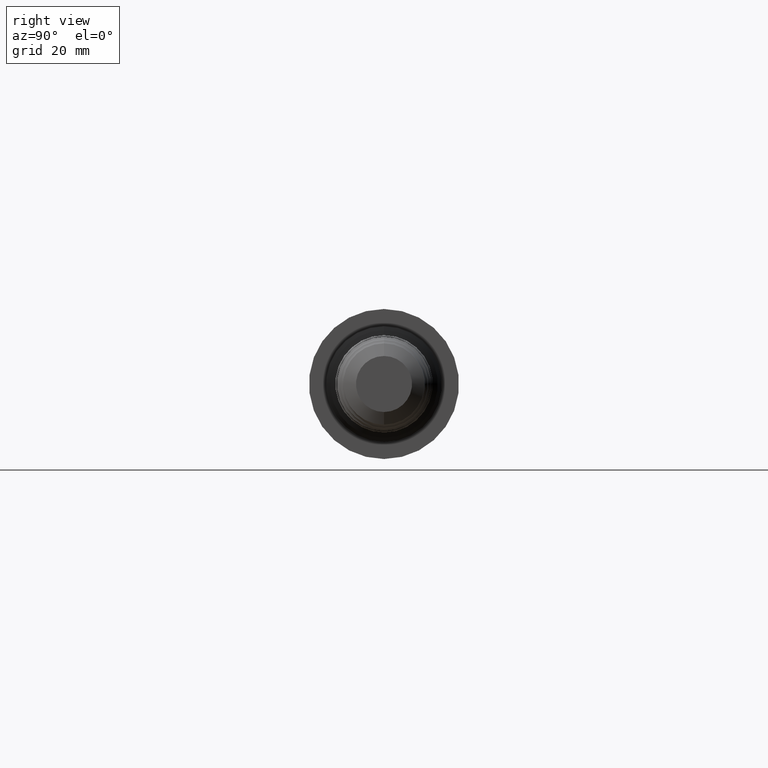
[diagram: clean part render]
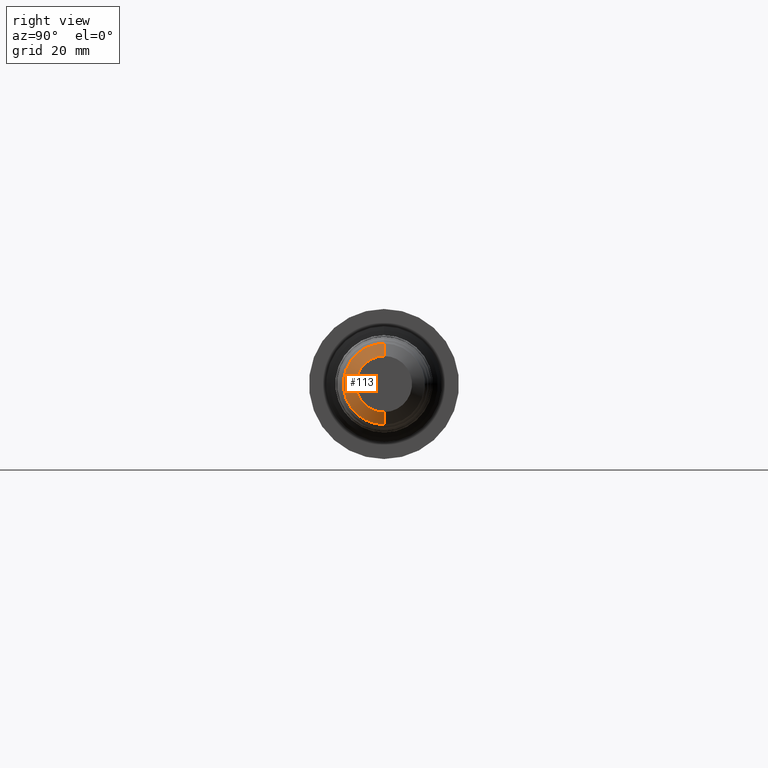
[diagram: same view with one face highlighted and labeled with its STEP entity id]
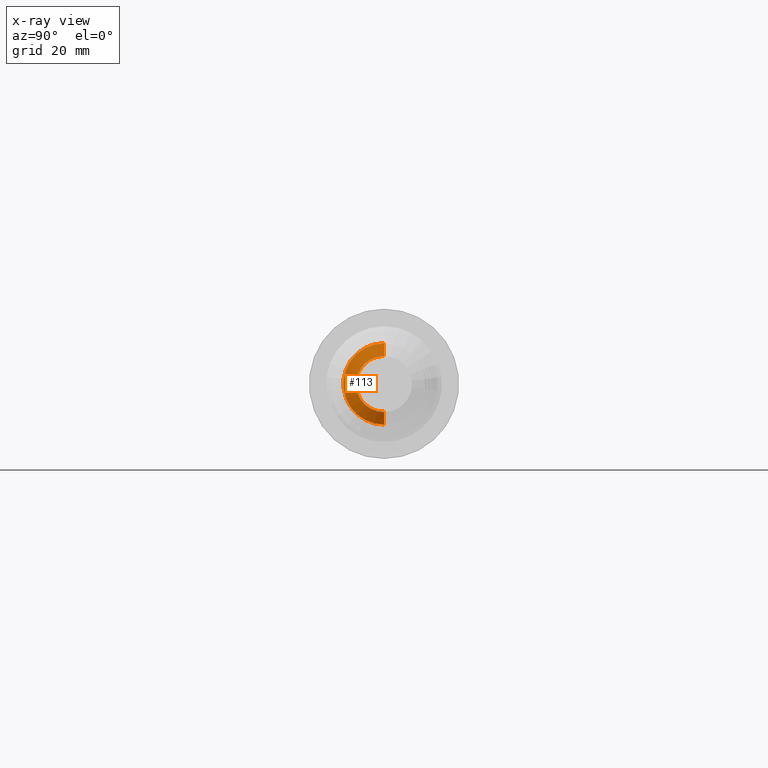
[diagram: x-ray of the same camera — body ghosted, the highlighted face saturated]
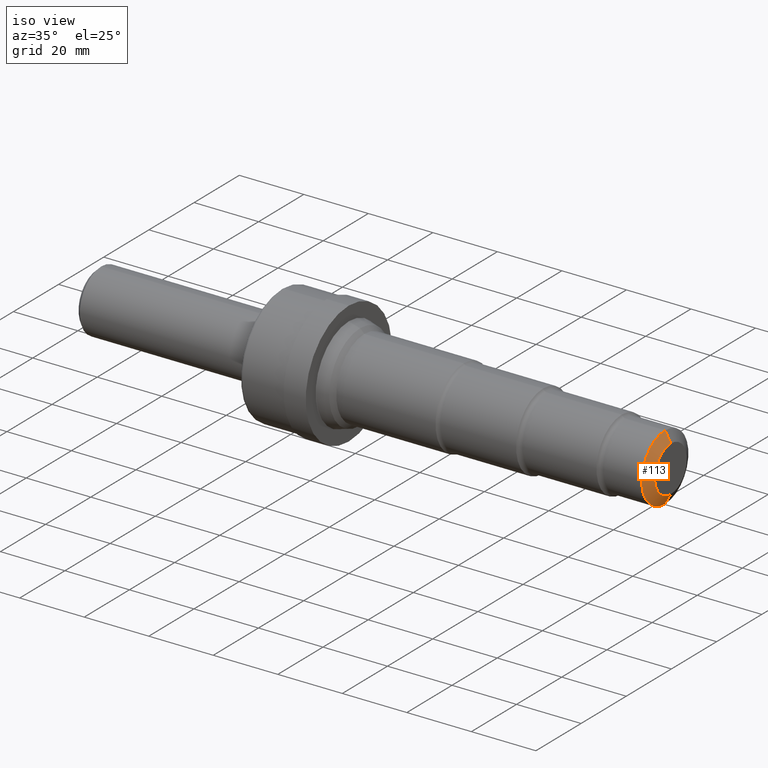
[diagram: same view with one face highlighted and labeled with its STEP entity id]
A machine part, right view. The second image highlights one B-rep face of the part: STEP entity #113.
The next image is the same camera in x-ray: the body ghosted, the highlighted face saturated — about 0% of this face is hidden behind the body in this view.
A second angle (iso view) of the same face is appended — the face is thin or edge-on in the first view.
In plain terms, the highlighted conical surface has half-angle 61 deg.
Its self-contained STEP definition (entity closure, byte-faithful):
#41 = ORIENTED_EDGE ( 'NONE', *, *, #503, .T. ) ;
#73 = VERTEX_POINT ( 'NONE', #77 ) ;
#77 = CARTESIAN_POINT ( 'NONE',  ( 7.000000000000000000, 0.0000000000000000000, 0.2801166571309994247 ) ) ;
#113 = ADVANCED_FACE ( 'NONE', ( #778 ), #973, .T. ) ;
#133 = CARTESIAN_POINT ( 'NONE',  ( 7.000000000000000000, 0.0000000000000000000, 0.0000000000000000000 ) ) ;
#163 = LINE ( 'NONE', #995, #351 ) ;
#187 = CIRCLE ( 'NONE', #616, 0.4063999999999999835 ) ;
#210 = DIRECTION ( 'NONE',  ( -1.000000000000000000, -0.0000000000000000000, -0.0000000000000000000 ) ) ;
#270 = VERTEX_POINT ( 'NONE', #313 ) ;
#313 = CARTESIAN_POINT ( 'NONE',  ( 6.929999999999999716, 0.0000000000000000000, 0.4063999999999999835 ) ) ;
#321 = DIRECTION ( 'NONE',  ( -1.000000000000000000, -0.0000000000000000000, -0.0000000000000000000 ) ) ;
#334 = LINE ( 'NONE', #918, #944 ) ;
#351 = VECTOR ( 'NONE', #847, 39.37007874015748143 ) ;
#358 = AXIS2_PLACEMENT_3D ( 'NONE', #133, #210, #839 ) ;
#403 = DIRECTION ( 'NONE',  ( 0.0000000000000000000, 0.0000000000000000000, 1.000000000000000000 ) ) ;
#413 = EDGE_CURVE ( 'NONE', #775, #73, #1017, .T. ) ;
#456 = DIRECTION ( 'NONE',  ( -1.000000000000000000, -0.0000000000000000000, -0.0000000000000000000 ) ) ;
#460 = EDGE_CURVE ( 'NONE', #775, #830, #163, .T. ) ;
#503 = EDGE_CURVE ( 'NONE', #73, #270, #334, .T. ) ;
#616 = AXIS2_PLACEMENT_3D ( 'NONE', #936, #456, #1014 ) ;
#625 = AXIS2_PLACEMENT_3D ( 'NONE', #961, #321, #403 ) ;
#630 = CARTESIAN_POINT ( 'NONE',  ( 7.000000000000000000, 4.203702133584096697E-17, -0.2801166571309994247 ) ) ;
#635 = EDGE_CURVE ( 'NONE', #830, #270, #187, .T. ) ;
#707 = CARTESIAN_POINT ( 'NONE',  ( 6.929999999999999716, 4.976964591734843260E-17, -0.4063999999999999835 ) ) ;
#760 = DIRECTION ( 'NONE',  ( -0.4848096202463347826, 0.0000000000000000000, 0.8746197071393970734 ) ) ;
#775 = VERTEX_POINT ( 'NONE', #630 ) ;
#778 = FACE_OUTER_BOUND ( 'NONE', #960, .T. ) ;
#830 = VERTEX_POINT ( 'NONE', #707 ) ;
#839 = DIRECTION ( 'NONE',  ( 0.0000000000000000000, 0.0000000000000000000, 1.000000000000000000 ) ) ;
#847 = DIRECTION ( 'NONE',  ( -0.4848096202463347826, 1.071100224819458088E-16, -0.8746197071393970734 ) ) ;
#854 = ORIENTED_EDGE ( 'NONE', *, *, #460, .F. ) ;
#918 = CARTESIAN_POINT ( 'NONE',  ( 7.000000000000000000, 0.0000000000000000000, 0.2801166571309994247 ) ) ;
#929 = ORIENTED_EDGE ( 'NONE', *, *, #413, .T. ) ;
#936 = CARTESIAN_POINT ( 'NONE',  ( 6.929999999999999716, 0.0000000000000000000, 0.0000000000000000000 ) ) ;
#944 = VECTOR ( 'NONE', #760, 39.37007874015748143 ) ;
#954 = ORIENTED_EDGE ( 'NONE', *, *, #635, .F. ) ;
#960 = EDGE_LOOP ( 'NONE', ( #854, #929, #41, #954 ) ) ;
#961 = CARTESIAN_POINT ( 'NONE',  ( 7.000000000000000000, 0.0000000000000000000, 0.0000000000000000000 ) ) ;
#973 = CONICAL_SURFACE ( 'NONE', #625, 0.2801166571309994247, 1.064650843716543616 ) ;
#995 = CARTESIAN_POINT ( 'NONE',  ( 7.000000000000000000, 3.430439675433350749E-17, -0.2801166571309994247 ) ) ;
#1014 = DIRECTION ( 'NONE',  ( 0.0000000000000000000, 0.0000000000000000000, 1.000000000000000000 ) ) ;
#1017 = CIRCLE ( 'NONE', #358, 0.2801166571309994247 ) ;